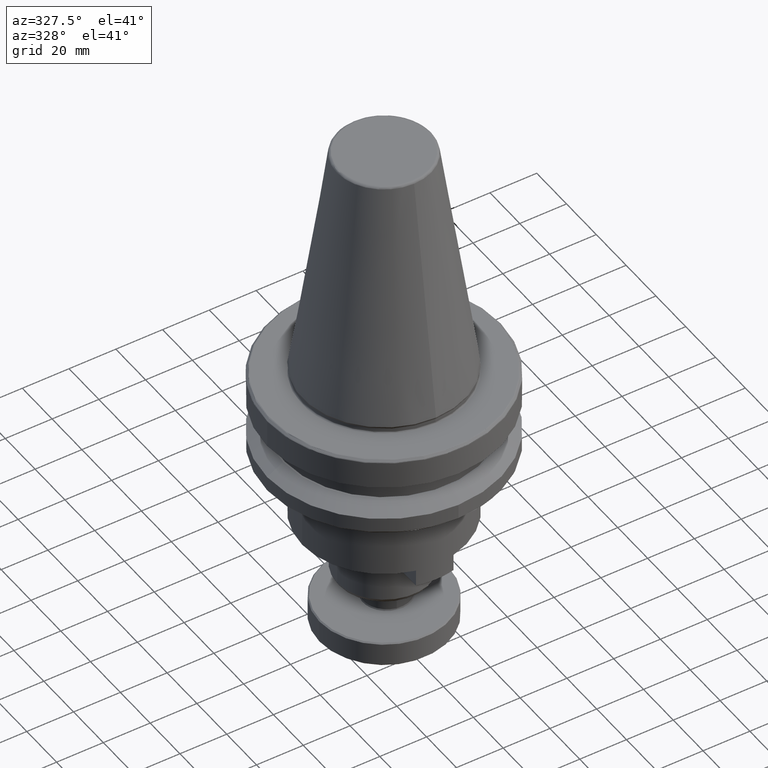
[diagram: clean part render]
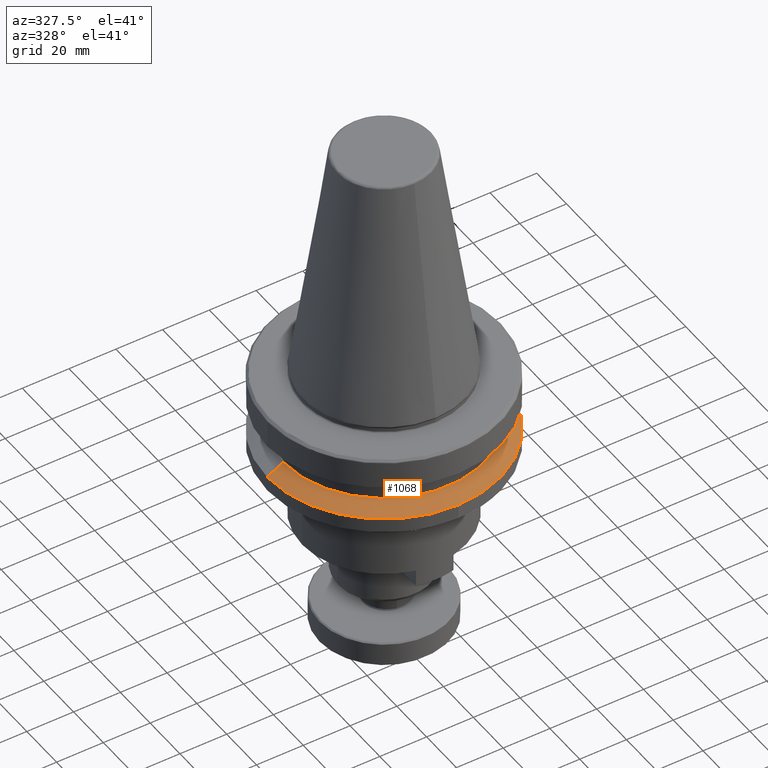
[diagram: same view with one face highlighted and labeled with its STEP entity id]
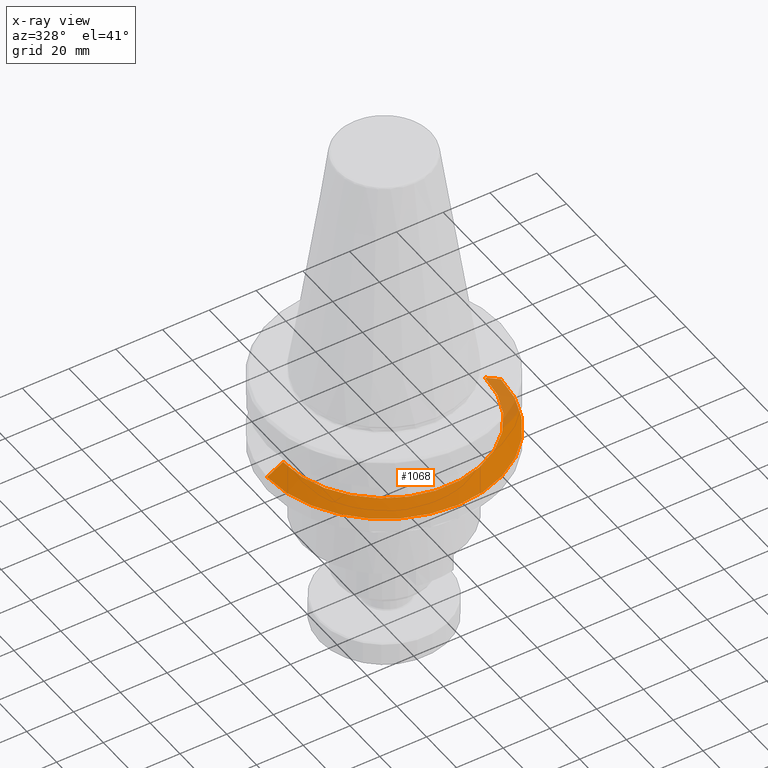
[diagram: x-ray of the same camera — body ghosted, the highlighted face saturated]
A machine part, auxiliary view. The second image highlights one B-rep face of the part: STEP entity #1068.
The next image is the same camera in x-ray: the body ghosted, the highlighted face saturated — about 10% of this face is hidden behind the body in this view.
In plain terms, the highlighted conical surface has half-angle 60 deg.
Its self-contained STEP definition (entity closure, byte-faithful):
#47 = CARTESIAN_POINT ( 'NONE',  ( 43.14069408088523300, 5.703222643826316100E-015, -26.69999999765068600 ) ) ;
#236 = ORIENTED_EDGE ( 'NONE', *, *, #1398, .F. ) ;
#294 = EDGE_CURVE ( 'NONE', #1670, #1278, #2111, .T. ) ;
#295 = AXIS2_PLACEMENT_3D ( 'NONE', #2735, #3263, #3241 ) ;
#399 = VERTEX_POINT ( 'NONE', #3213 ) ;
#538 = EDGE_CURVE ( 'NONE', #1670, #399, #2274, .T. ) ;
#556 = ORIENTED_EDGE ( 'NONE', *, *, #294, .F. ) ;
#752 = ORIENTED_EDGE ( 'NONE', *, *, #538, .T. ) ;
#917 = DIRECTION ( 'NONE',  ( -1.000000000000000000, 0.0000000000000000000, 0.0000000000000000000 ) ) ;
#918 = DIRECTION ( 'NONE',  ( -0.0000000000000000000, -0.0000000000000000000, -1.000000000000000000 ) ) ;
#919 = CARTESIAN_POINT ( 'NONE',  ( 0.0000000000000000000, 0.0000000000000000000, -30.66022211650906800 ) ) ;
#955 = AXIS2_PLACEMENT_3D ( 'NONE', #1458, #1883, #1454 ) ;
#971 = DIRECTION ( 'NONE',  ( -0.0000000000000000000, -0.0000000000000000000, -1.000000000000000000 ) ) ;
#1068 = ADVANCED_FACE ( 'NONE', ( #2823 ), #2873, .T. ) ;
#1169 = CARTESIAN_POINT ( 'NONE',  ( -43.14069408088523300, 0.0000000000000000000, -26.69999999765068600 ) ) ;
#1174 = DIRECTION ( 'NONE',  ( -0.8660254037844393700, 0.0000000000000000000, -0.4999999999999987200 ) ) ;
#1246 = CARTESIAN_POINT ( 'NONE',  ( 50.00000000000604000, 6.123233995737506000E-015, -30.66022211650906800 ) ) ;
#1278 = VERTEX_POINT ( 'NONE', #1246 ) ;
#1316 = EDGE_CURVE ( 'NONE', #399, #1956, #2983, .T. ) ;
#1398 = EDGE_CURVE ( 'NONE', #2860, #1956, #2960, .T. ) ;
#1454 = DIRECTION ( 'NONE',  ( -1.000000000000000000, 0.0000000000000000000, 0.0000000000000000000 ) ) ;
#1458 = CARTESIAN_POINT ( 'NONE',  ( 0.0000000000000000000, 0.0000000000000000000, -26.69999999765068600 ) ) ;
#1670 = VERTEX_POINT ( 'NONE', #47 ) ;
#1676 = ORIENTED_EDGE ( 'NONE', *, *, #3190, .F. ) ;
#1883 = DIRECTION ( 'NONE',  ( -0.0000000000000000000, -0.0000000000000000000, -1.000000000000000000 ) ) ;
#1886 = CARTESIAN_POINT ( 'NONE',  ( 43.14069408088523300, 5.283211291915127000E-015, -26.69999999765068600 ) ) ;
#1956 = VERTEX_POINT ( 'NONE', #3282 ) ;
#1988 = ORIENTED_EDGE ( 'NONE', *, *, #1316, .T. ) ;
#2040 = AXIS2_PLACEMENT_3D ( 'NONE', #2500, #971, #2762 ) ;
#2091 = AXIS2_PLACEMENT_3D ( 'NONE', #919, #918, #917 ) ;
#2111 = LINE ( 'NONE', #1886, #2121 ) ;
#2121 = VECTOR ( 'NONE', #3278, 1000.000000000000000 ) ;
#2274 = CIRCLE ( 'NONE', #295, 43.14069408088523300 ) ;
#2500 = CARTESIAN_POINT ( 'NONE',  ( 0.0000000000000000000, 0.0000000000000000000, -30.66022211650906800 ) ) ;
#2735 = CARTESIAN_POINT ( 'NONE',  ( 0.0000000000000000000, 0.0000000000000000000, -26.69999999765068600 ) ) ;
#2762 = DIRECTION ( 'NONE',  ( -1.000000000000000000, 0.0000000000000000000, 0.0000000000000000000 ) ) ;
#2823 = FACE_OUTER_BOUND ( 'NONE', #2897, .T. ) ;
#2842 = CARTESIAN_POINT ( 'NONE',  ( 0.0000000000000000000, -50.00000000000604000, -30.66022211650906800 ) ) ;
#2860 = VERTEX_POINT ( 'NONE', #2842 ) ;
#2873 = CONICAL_SURFACE ( 'NONE', #955, 43.14069408088523300, 1.047197551196599200 ) ;
#2878 = CIRCLE ( 'NONE', #2040, 50.00000000000604000 ) ;
#2897 = EDGE_LOOP ( 'NONE', ( #556, #752, #1988, #236, #1676 ) ) ;
#2960 = CIRCLE ( 'NONE', #2091, 50.00000000000604000 ) ;
#2983 = LINE ( 'NONE', #1169, #3033 ) ;
#3033 = VECTOR ( 'NONE', #1174, 1000.000000000000000 ) ;
#3190 = EDGE_CURVE ( 'NONE', #1278, #2860, #2878, .T. ) ;
#3213 = CARTESIAN_POINT ( 'NONE',  ( -43.14069408088523300, 0.0000000000000000000, -26.69999999765068600 ) ) ;
#3241 = DIRECTION ( 'NONE',  ( -1.000000000000000000, 0.0000000000000000000, 0.0000000000000000000 ) ) ;
#3263 = DIRECTION ( 'NONE',  ( -0.0000000000000000000, -0.0000000000000000000, -1.000000000000000000 ) ) ;
#3278 = DIRECTION ( 'NONE',  ( 0.8660254037844393700, 1.060575238724907800E-016, -0.4999999999999987200 ) ) ;
#3282 = CARTESIAN_POINT ( 'NONE',  ( -50.00000000000604000, 0.0000000000000000000, -30.66022211650906800 ) ) ;